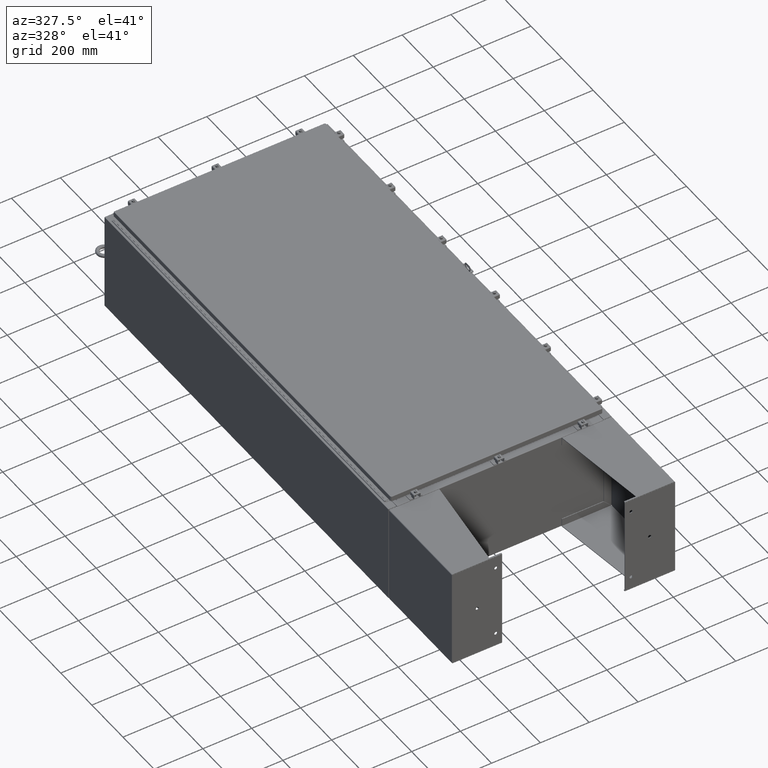
[diagram: clean part render]
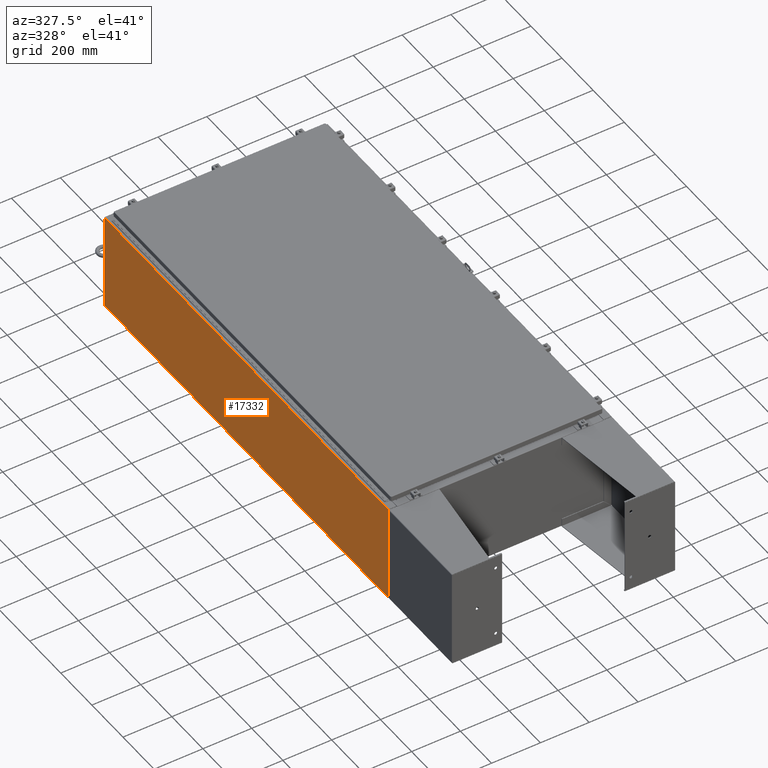
[diagram: same view with one face highlighted and labeled with its STEP entity id]
A machine part, auxiliary view. The second image highlights one B-rep face of the part: STEP entity #17332.
In plain terms, the highlighted planar face has unit normal (1, 0, 0).
Its self-contained STEP definition (entity closure, byte-faithful):
#3798 = VECTOR ( 'NONE', #23849, 39.37007874015748100 ) ;
#5877 = EDGE_CURVE ( 'NONE', #60957, #71792, #49372, .T. ) ;
#6604 = EDGE_LOOP ( 'NONE', ( #63226, #23893, #52380, #50869 ) ) ;
#9145 = DIRECTION ( 'NONE',  ( 3.430827668758847900E-015, 0.0000000000000000000, -1.000000000000000000 ) ) ;
#15052 = CARTESIAN_POINT ( 'NONE',  ( -17.99999999999999600, -35.92530000000000000, 0.01299999999999984700 ) ) ;
#17332 = ADVANCED_FACE ( 'NONE', ( #22920 ), #49331, .F. ) ;
#20644 = AXIS2_PLACEMENT_3D ( 'NONE', #46585, #26765, #9145 ) ;
#21142 = VECTOR ( 'NONE', #75967, 39.37007874015748100 ) ;
#22410 = EDGE_CURVE ( 'NONE', #56979, #48021, #38073, .T. ) ;
#22920 = FACE_OUTER_BOUND ( 'NONE', #6604, .T. ) ;
#23849 = DIRECTION ( 'NONE',  ( -0.0000000000000000000, 1.000000000000000000, -0.0000000000000000000 ) ) ;
#23884 = EDGE_CURVE ( 'NONE', #48021, #71792, #70217, .T. ) ;
#23893 = ORIENTED_EDGE ( 'NONE', *, *, #23884, .T. ) ;
#26375 = CARTESIAN_POINT ( 'NONE',  ( -18.00000000000005000, -35.92530000000000000, 15.83759999999999700 ) ) ;
#26765 = DIRECTION ( 'NONE',  ( 1.000000000000000000, 0.0000000000000000000, 3.430827668758847900E-015 ) ) ;
#26979 = CARTESIAN_POINT ( 'NONE',  ( -18.00000000000005000, 35.92530000000000000, 15.83759999999999700 ) ) ;
#32516 = VECTOR ( 'NONE', #55142, 39.37007874015748100 ) ;
#38073 = LINE ( 'NONE', #54692, #32516 ) ;
#40534 = CARTESIAN_POINT ( 'NONE',  ( -17.99999999999999600, 35.92530000000000000, -6.201571169367083300E-014 ) ) ;
#46585 = CARTESIAN_POINT ( 'NONE',  ( -17.99999999999999600, 0.0000000000000000000, -6.201571169367083300E-014 ) ) ;
#48021 = VERTEX_POINT ( 'NONE', #26979 ) ;
#48697 = VECTOR ( 'NONE', #76598, 39.37007874015748100 ) ;
#48721 = CARTESIAN_POINT ( 'NONE',  ( -17.99999999999999600, 35.92530000000000000, 0.01299999999999984800 ) ) ;
#49331 = PLANE ( 'NONE',  #20644 ) ;
#49372 = LINE ( 'NONE', #61035, #3798 ) ;
#50585 = LINE ( 'NONE', #70674, #48697 ) ;
#50869 = ORIENTED_EDGE ( 'NONE', *, *, #74746, .T. ) ;
#52380 = ORIENTED_EDGE ( 'NONE', *, *, #5877, .F. ) ;
#54692 = CARTESIAN_POINT ( 'NONE',  ( -18.00000000000005000, -35.92530000000000000, 15.83759999999999700 ) ) ;
#55142 = DIRECTION ( 'NONE',  ( 0.0000000000000000000, 1.000000000000000000, 0.0000000000000000000 ) ) ;
#56979 = VERTEX_POINT ( 'NONE', #26375 ) ;
#60957 = VERTEX_POINT ( 'NONE', #15052 ) ;
#61035 = CARTESIAN_POINT ( 'NONE',  ( -17.99999999999999600, 35.92530000000000000, 0.01299999999999984700 ) ) ;
#63226 = ORIENTED_EDGE ( 'NONE', *, *, #22410, .T. ) ;
#70217 = LINE ( 'NONE', #40534, #21142 ) ;
#70674 = CARTESIAN_POINT ( 'NONE',  ( -17.99999999999999600, -35.92529999999999300, -6.201571169367083300E-014 ) ) ;
#71792 = VERTEX_POINT ( 'NONE', #48721 ) ;
#74746 = EDGE_CURVE ( 'NONE', #60957, #56979, #50585, .T. ) ;
#75967 = DIRECTION ( 'NONE',  ( 3.430827668758847900E-015, 0.0000000000000000000, -1.000000000000000000 ) ) ;
#76598 = DIRECTION ( 'NONE',  ( -3.430827668758847900E-015, 0.0000000000000000000, 1.000000000000000000 ) ) ;